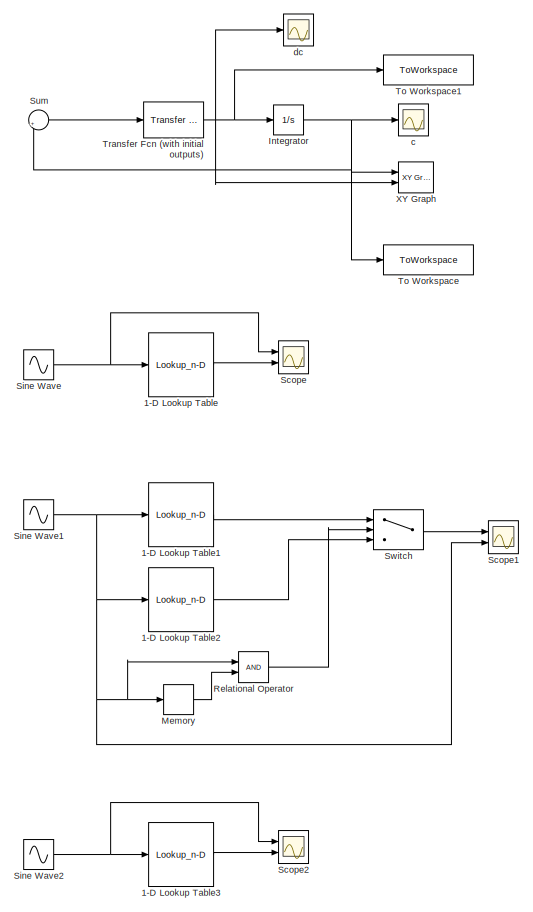
[diagram: root canvas - part 1/2, top center region]
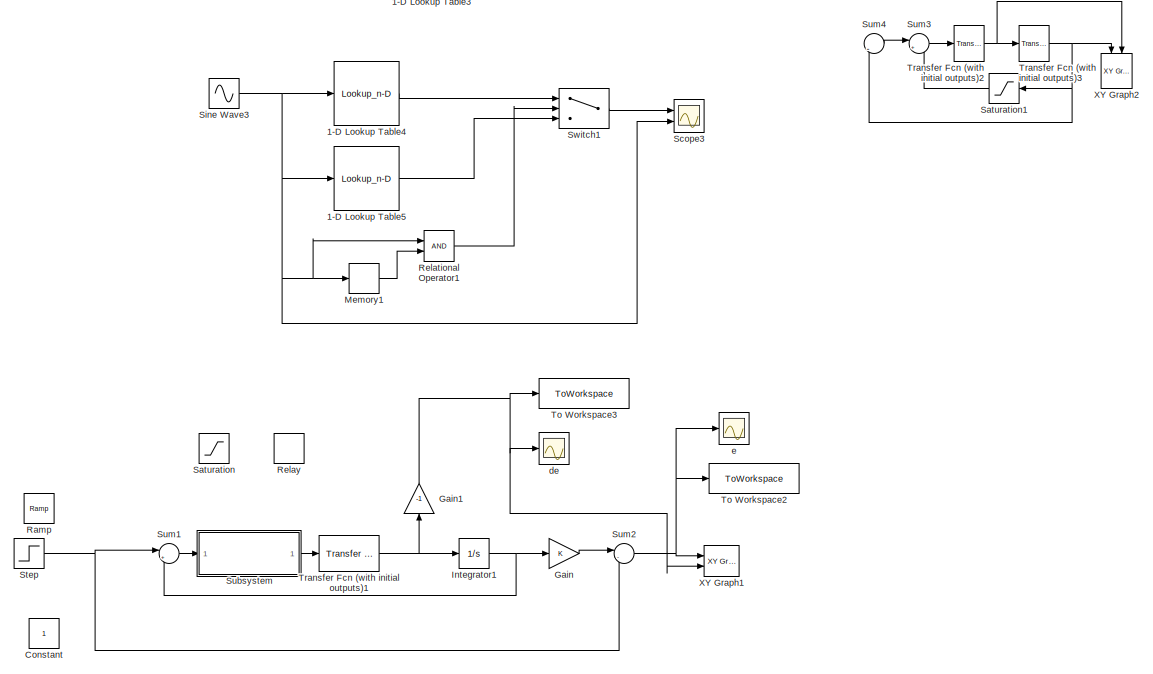
[diagram: root canvas - part 2/2, full width, bottom band]
MODEL slx_b2178c50826d
KIND model
CONFIG AbsTol = auto
CONFIG EnableMultiTasking = off
CONFIG FixedStep = 0.01
CONFIG MaxStep = auto
CONFIG MinStep = auto
CONFIG RelTol = 1e-3
CONFIG SampleTimeConstraint = Unconstrained
CONFIG SolverName = ode4
CONFIG StartTime = 0.0
CONFIG StopTime = 15
BLOCK [Lookup_n-D] 1-D Lookup Table
  BreakpointsForDimension1 = [-5 -1 1 5]
  InputPortMap = u0
  InternalRulePriority = Speed
  NumberOfTableDimensions = 1
  Ports = [1, 1]
  RndMeth = Simplest
  Table = [-4 0 0 4]
BLOCK [Lookup_n-D] 1-D Lookup Table1
  BreakpointsForDimension1 = [-3 -1 3]
  InputPortMap = u0
  InternalRulePriority = Speed
  NumberOfTableDimensions = 1
  Ports = [1, 1]
  RndMeth = Simplest
  Table = [-1 -1 1]
BLOCK [Lookup_n-D] 1-D Lookup Table2
  BreakpointsForDimension1 = [-3 1 3]
  InputPortMap = u0
  InternalRulePriority = Speed
  NumberOfTableDimensions = 1
  Ports = [1, 1]
  RndMeth = Simplest
  Table = [-1 1 1]
BLOCK [Lookup_n-D] 1-D Lookup Table3
  BreakpointsForDimension1 = [-5 -1.001 -1 1 1.001 5]
  InputPortMap = u0
  InternalRulePriority = Speed
  NumberOfTableDimensions = 1
  Ports = [1, 1]
  RndMeth = Simplest
  Table = [-1 -1 0 0 1 1]
BLOCK [Lookup_n-D] 1-D Lookup Table4
  BreakpointsForDimension1 = [-5 -1.001 -1 2 2.001 5]
  InputPortMap = u0
  InternalRulePriority = Speed
  NumberOfTableDimensions = 1
  Ports = [1, 1]
  RndMeth = Simplest
  Table = [-1 -1 0 0 1 1]
BLOCK [Lookup_n-D] 1-D Lookup Table5
  BreakpointsForDimension1 = [-5 -2.0001 -2 1 1.001 5]
  InputPortMap = u0
  InternalRulePriority = Speed
  NumberOfTableDimensions = 1
  Ports = [1, 1]
  RndMeth = Simplest
  Table = [-1 -1 0 0 1 1]
BLOCK [Constant] Constant
BLOCK [Gain] Gain
BLOCK [Gain] Gain1
  Gain = -1
  NameLocation = right
BLOCK [Integrator] Integrator
  InitialCondition = 10
  Ports = [1, 1]
BLOCK [Integrator] Integrator1
  InitialCondition = -0.5
  Ports = [1, 1]
BLOCK [Memory] Memory
BLOCK [Memory] Memory1
BLOCK [Reference] Ramp  REF=simulink/Sources/Ramp
  Ports = [0, 1]
  SourceBlock = simulink/Sources/Ramp
  SourceType = Ramp
BLOCK [RelationalOperator] Relational Operator
  InputSameDT = off
  OutDataTypeStr = boolean
  Ports = [2, 1]
  RndMeth = Simplest
BLOCK [RelationalOperator] Relational Operator1
  InputSameDT = off
  OutDataTypeStr = boolean
  Ports = [2, 1]
  RndMeth = Simplest
BLOCK [Relay] Relay
  OffOutputValue = -1
  OffSwitchValue = -1
  OnSwitchValue = 1
BLOCK [Saturate] Saturation
BLOCK [Saturate] Saturation1
  LowerLimit = -1
  NameLocation = top
  UpperLimit = 1
BLOCK [Scope] Scope
  Floating = off
  NumInputPorts = 2
  Ports = [2]
  ScopeSpecificationString = Simulink.scopes.TimeScopeBlockCfg('CurrentConfiguration', extmgr.ConfigurationSet(extmgr.Configuration('Core','General UI',true,'DisplayFullSourceName',false,'ShowMainToolbar',true,'FigureColor',[0.129411764705882 0.129411764705882 0.129411764705882]),extmgr.Configuration('Sources','WiredSimulink',true,'DataLogging',false,'DataLoggingVariableName','ScopeData2','DataLoggingLimitDataPoints',false,'D...<+2385ch>
BLOCK [Scope] Scope1
  Floating = off
  NumInputPorts = 2
  Ports = [2]
  ScopeSpecificationString = Simulink.scopes.TimeScopeBlockCfg('CurrentConfiguration', extmgr.ConfigurationSet(extmgr.Configuration('Core','General UI',true,'DisplayFullSourceName',false,'ShowMainToolbar',true,'FigureColor',[0.129411764705882 0.129411764705882 0.129411764705882]),extmgr.Configuration('Sources','WiredSimulink',true,'DataLogging',false,'DataLoggingVariableName','ScopeData3','DataLoggingLimitDataPoints',false,'D...<+2379ch>
BLOCK [Scope] Scope2
  Floating = off
  NumInputPorts = 2
  Ports = [2]
  ScopeSpecificationString = Simulink.scopes.TimeScopeBlockCfg('CurrentConfiguration', extmgr.ConfigurationSet(extmgr.Configuration('Core','General UI',true,'DisplayFullSourceName',false,'ShowMainToolbar',true,'FigureColor',[0.129411764705882 0.129411764705882 0.129411764705882]),extmgr.Configuration('Sources','WiredSimulink',true,'DataLogging',false,'DataLoggingVariableName','ScopeData4','DataLoggingLimitDataPoints',false,'D...<+2385ch>
BLOCK [Scope] Scope3
  Floating = off
  NumInputPorts = 2
  Ports = [2]
  ScopeSpecificationString = Simulink.scopes.TimeScopeBlockCfg('CurrentConfiguration', extmgr.ConfigurationSet(extmgr.Configuration('Core','General UI',true,'DisplayFullSourceName',false,'ShowMainToolbar',true,'FigureColor',[0.129411764705882 0.129411764705882 0.129411764705882]),extmgr.Configuration('Sources','WiredSimulink',true,'DataLogging',false,'DataLoggingVariableName','ScopeData5','DataLoggingLimitDataPoints',false,'D...<+2382ch>
BLOCK [Sin] Sine Wave
  Amplitude = 2
  Ports = [0, 1]
  SampleTime = 0
BLOCK [Sin] Sine Wave1
  Amplitude = 3
  Ports = [0, 1]
  SampleTime = 0
BLOCK [Sin] Sine Wave2
  Amplitude = 2
  Ports = [0, 1]
  SampleTime = 0
BLOCK [Sin] Sine Wave3
  Amplitude = 2
  Ports = [0, 1]
  SampleTime = 0
BLOCK [Step] Step
  After = 0
  SampleTime = 0
  Time = 0
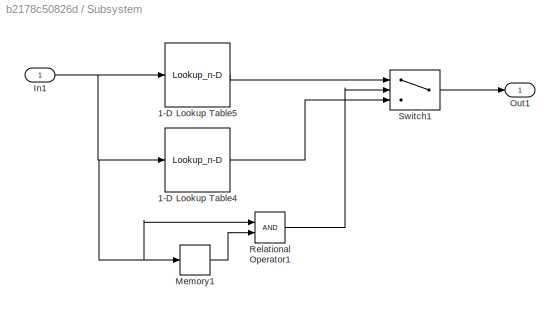
BLOCK [SubSystem] Subsystem
  Ports = [1, 1]
BLOCK [Lookup_n-D] Subsystem/1-D Lookup Table4
  BreakpointsForDimension1 = [-2 -1.001 -1 2]
  InputPortMap = u0
  InternalRulePriority = Speed
  NumberOfTableDimensions = 1
  Ports = [1, 1]
  RndMeth = Simplest
  Table = [-1 -1  1 1]
BLOCK [Lookup_n-D] Subsystem/1-D Lookup Table5
  BreakpointsForDimension1 = [-2 1 1.001 2]
  InputPortMap = u0
  InternalRulePriority = Speed
  NumberOfTableDimensions = 1
  Ports = [1, 1]
  RndMeth = Simplest
  Table = [-1 -1 1 1]
BLOCK [Inport] Subsystem/In1
BLOCK [Memory] Subsystem/Memory1
BLOCK [Outport] Subsystem/Out1
BLOCK [RelationalOperator] Subsystem/Relational Operator1
  InputSameDT = off
  OutDataTypeStr = boolean
  Ports = [2, 1]
  RndMeth = Simplest
BLOCK [Switch] Subsystem/Switch1
  Criteria = u2 > Threshold
  InputSameDT = off
  SaturateOnIntegerOverflow = off
  Threshold = 0.5
BLOCK [Sum] Sum
  Inputs = |+-
  Ports = [2, 1]
BLOCK [Sum] Sum1
  Inputs = |+-
  Ports = [2, 1]
BLOCK [Sum] Sum2
  Inputs = |-+
  Ports = [2, 1]
BLOCK [Sum] Sum3
  Inputs = |+-
  Ports = [2, 1]
BLOCK [Sum] Sum4
  Inputs = ||-
  Ports = [1, 1]
BLOCK [Switch] Switch
  Criteria = u2 > Threshold
  InputSameDT = off
  SaturateOnIntegerOverflow = off
  Threshold = 0.5
BLOCK [Switch] Switch1
  Criteria = u2 > Threshold
  InputSameDT = off
  SaturateOnIntegerOverflow = off
  Threshold = 0.5
BLOCK [ToWorkspace] To Workspace
  FixptAsFi = on
  MaxDataPoints = inf
  Ports = [1]
  SampleTime = -1
  VariableName = c
BLOCK [ToWorkspace] To Workspace1
  FixptAsFi = on
  MaxDataPoints = inf
  Ports = [1]
  SampleTime = -1
  VariableName = dc
BLOCK [ToWorkspace] To Workspace2
  FixptAsFi = on
  MaxDataPoints = inf
  Ports = [1]
  SampleTime = -1
  VariableName = e
BLOCK [ToWorkspace] To Workspace3
  FixptAsFi = on
  MaxDataPoints = inf
  Ports = [1]
  SampleTime = -1
  VariableName = de
BLOCK [Reference] Transfer Fcn (with initial outputs)  REF=simulink_extras/Additional
Linear/Transfer Fcn
(with initial outputs)
  Ports = [1, 1]
  SourceBlock = simulink_extras/Additional\nLinear/Transfer Fcn\n(with initial outputs)
  SourceType = Transfer Function with Initial Outputs
BLOCK [Reference] Transfer Fcn (with initial outputs)1  REF=simulink_extras/Additional
Linear/Transfer Fcn
(with initial outputs)
  Ports = [1, 1]
  SourceBlock = simulink_extras/Additional\nLinear/Transfer Fcn\n(with initial outputs)
  SourceType = Transfer Function with Initial Outputs
BLOCK [Reference] Transfer Fcn (with initial outputs)2  REF=simulink_extras/Additional
Linear/Transfer Fcn
(with initial outputs)
  Ports = [1, 1]
  SourceBlock = simulink_extras/Additional\nLinear/Transfer Fcn\n(with initial outputs)
  SourceType = Transfer Function with Initial Outputs
BLOCK [Reference] Transfer Fcn (with initial outputs)3  REF=simulink_extras/Additional
Linear/Transfer Fcn
(with initial outputs)
  Ports = [1, 1]
  SourceBlock = simulink_extras/Additional\nLinear/Transfer Fcn\n(with initial outputs)
  SourceType = Transfer Function with Initial Outputs
BLOCK [Reference] XY Graph  REF=simulink/Sinks/XY Graph
  Ports = [2]
  SourceBlock = simulink/Sinks/XY Graph
  SourceType = XY scope.
BLOCK [Reference] XY Graph1  REF=simulink/Sinks/XY Graph
  Ports = [2]
  SourceBlock = simulink/Sinks/XY Graph
  SourceType = XY scope.
BLOCK [Reference] XY Graph2  REF=simulink/Sinks/XY Graph
  NameLocation = right
  Ports = [2]
  SourceBlock = simulink/Sinks/XY Graph
  SourceType = XY scope.
BLOCK [Scope] c
  Floating = off
  NumInputPorts = 1
  Ports = [1]
  ScopeSpecificationString = Simulink.scopes.TimeScopeBlockCfg('CurrentConfiguration', extmgr.ConfigurationSet(extmgr.Configuration('Core','General UI',true,'DisplayFullSourceName',false,'ShowMainToolbar',true,'FigureColor',[0.129411764705882 0.129411764705882 0.129411764705882]),extmgr.Configuration('Sources','WiredSimulink',true,'DataLogging',false,'DataLoggingVariableName','ScopeData1','DataLoggingLimitDataPoints',false,'D...<+2235ch>
BLOCK [Scope] dc
  Floating = off
  NumInputPorts = 1
  Ports = [1]
  ScopeSpecificationString = Simulink.scopes.TimeScopeBlockCfg('CurrentConfiguration', extmgr.ConfigurationSet(extmgr.Configuration('Core','General UI',true,'DisplayFullSourceName',false,'ShowMainToolbar',true,'FigureColor',[0.129411764705882 0.129411764705882 0.129411764705882]),extmgr.Configuration('Sources','WiredSimulink',true,'DataLogging',false,'DataLoggingVariableName','ScopeData','DataLoggingLimitDataPoints',false,'Da...<+2258ch>
BLOCK [Scope] de
  ContainerLayout = {"WindowBounds":[632,455,886,657],"gridDimensions":{"w":1,"h":1},"tileCount":1,"tileCoverage":1,"columnWeights":1,"rowWeights":1,"tileOccupancy":{"children":[{"id":"/de"},{"id":"/e"}]}}
  Floating = off
  NumInputPorts = 1
  Ports = [1]
  ScopeSpecificationString = Simulink.scopes.TimeScopeBlockCfg('CurrentConfiguration', extmgr.ConfigurationSet(extmgr.Configuration('Core','General UI',true,'DisplayFullSourceName',false,'ShowMainToolbar',true,'FigureColor',[0.129411764705882 0.129411764705882 0.129411764705882]),extmgr.Configuration('Sources','WiredSimulink',true,'DataLogging',false,'DataLoggingVariableName','ScopeData7','DataLoggingLimitDataPoints',false,'D...<+2271ch>
BLOCK [Scope] e
  ContainerLayout = {"WindowBounds":[632,455,886,657],"gridDimensions":{"w":1,"h":1},"tileCount":1,"tileCoverage":1,"columnWeights":1,"rowWeights":1,"tileOccupancy":{"children":[{"id":"/de"},{"id":"/e"}]}}
  Floating = off
  NumInputPorts = 1
  Ports = [1]
  ScopeSpecificationString = Simulink.scopes.TimeScopeBlockCfg('CurrentConfiguration', extmgr.ConfigurationSet(extmgr.Configuration('Core','General UI',true,'DisplayFullSourceName',false,'ShowMainToolbar',true,'FigureColor',[0.129411764705882 0.129411764705882 0.129411764705882]),extmgr.Configuration('Sources','WiredSimulink',true,'DataLogging',false,'DataLoggingVariableName','ScopeData6','DataLoggingLimitDataPoints',false,'D...<+2270ch>
LINE 1-D Lookup Table1:1 -> Switch:1
LINE 1-D Lookup Table2:1 -> Switch:3
LINE 1-D Lookup Table3:1 -> Scope2:2
LINE 1-D Lookup Table4:1 -> Switch1:1
LINE 1-D Lookup Table5:1 -> Switch1:3
LINE 1-D Lookup Table:1 -> Scope:2
NET Gain1:1 -> To Workspace3:1, XY Graph1:2, de:1
LINE Gain:1 -> Sum2:1
NET Integrator1:1 -> Gain:1, Sum1:2
NET Integrator:1 -> Sum:2, To Workspace:1, XY Graph:1, c:1
LINE Memory1:1 -> Relational Operator1:2
LINE Memory:1 -> Relational Operator:2
LINE Relational Operator1:1 -> Switch1:2
LINE Relational Operator:1 -> Switch:2
LINE Saturation1:1 -> Sum3:2
NET Sine Wave1:1 -> 1-D Lookup Table1:1, 1-D Lookup Table2:1, Memory:1, Relational Operator:1, Scope1:2
NET Sine Wave2:1 -> 1-D Lookup Table3:1, Scope2:1
NET Sine Wave3:1 -> 1-D Lookup Table4:1, 1-D Lookup Table5:1, Memory1:1, Relational Operator1:1, Scope3:2
NET Sine Wave:1 -> 1-D Lookup Table:1, Scope:1
NET Step:1 -> Sum1:1, Sum2:2
LINE Subsystem/1-D Lookup Table4:1 -> Subsystem/Switch1:3
LINE Subsystem/1-D Lookup Table5:1 -> Subsystem/Switch1:1
NET Subsystem/In1:1 -> Subsystem/1-D Lookup Table4:1, Subsystem/1-D Lookup Table5:1, Subsystem/Memory1:1, Subsystem/Relational Operator1:1
LINE Subsystem/Memory1:1 -> Subsystem/Relational Operator1:2
LINE Subsystem/Relational Operator1:1 -> Subsystem/Switch1:2
LINE Subsystem/Switch1:1 -> Subsystem/Out1:1
LINE Subsystem:1 -> Transfer Fcn (with initial outputs)1:1
LINE Sum1:1 -> Subsystem:1
NET Sum2:1 -> To Workspace2:1, XY Graph1:1, e:1
LINE Sum3:1 -> Transfer Fcn (with initial outputs)2:1
LINE Sum4:1 -> Sum3:1
LINE Sum:1 -> Transfer Fcn (with initial outputs):1
LINE Switch1:1 -> Scope3:1
LINE Switch:1 -> Scope1:1
NET Transfer Fcn (with initial outputs)1:1 -> Gain1:1, Integrator1:1
NET Transfer Fcn (with initial outputs)2:1 -> Transfer Fcn (with initial outputs)3:1, XY Graph2:2
NET Transfer Fcn (with initial outputs)3:1 -> Saturation1:1, Sum4:1, XY Graph2:1
NET Transfer Fcn (with initial outputs):1 -> Integrator:1, To Workspace1:1, XY Graph:2, dc:1
note: NET lines group one-source signal fan-out (src -> all destinations, sorted); 1:1 wires keep LINE
